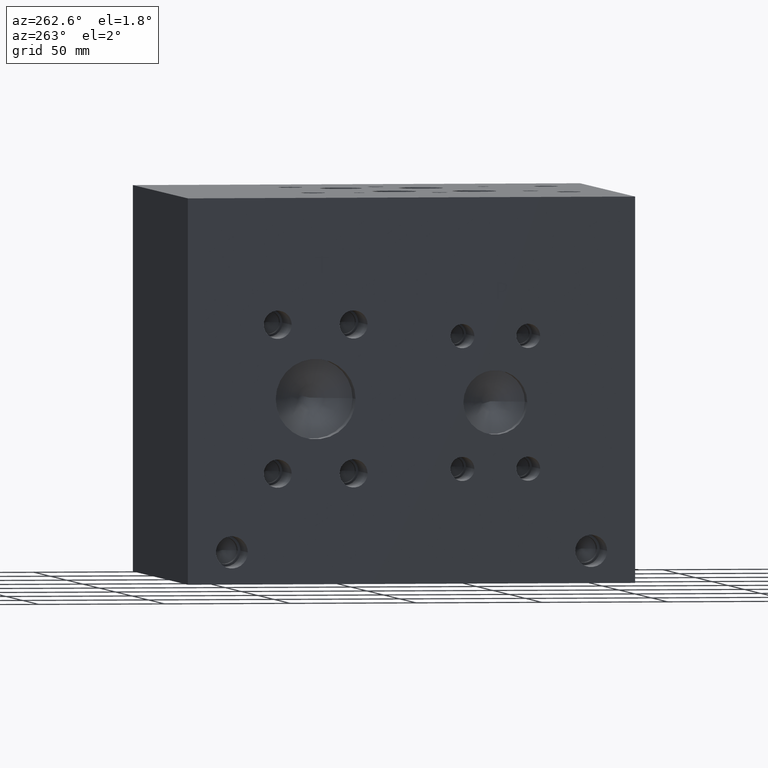
[diagram: clean part render]
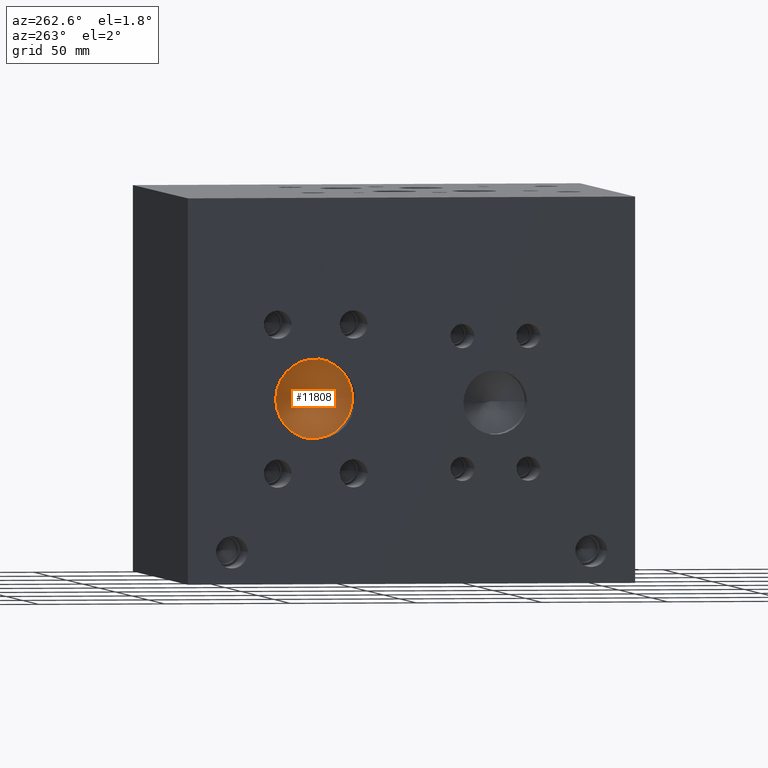
[diagram: same view with one face highlighted and labeled with its STEP entity id]
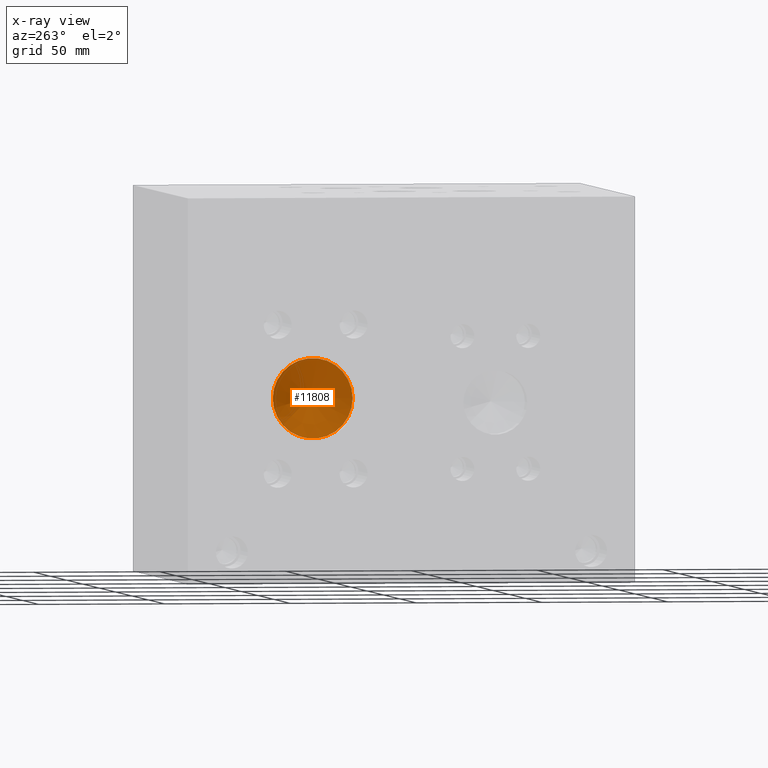
[diagram: x-ray of the same camera — body ghosted, the highlighted face saturated]
A machine part, auxiliary view. The second image highlights one B-rep face of the part: STEP entity #11808.
The next image is the same camera in x-ray: the body ghosted, the highlighted face saturated — about 0% of this face is hidden behind the body in this view.
In plain terms, the highlighted conical surface has half-angle 60 deg.
Its self-contained STEP definition (entity closure, byte-faithful):
#128=CONICAL_SURFACE('',#12520,7.9375,1.0471975511966);
#338=CIRCLE('',#12521,15.875);
#339=CIRCLE('',#12522,15.875);
#1500=FACE_OUTER_BOUND('',#2211,.T.);
#2211=EDGE_LOOP('',(#10277,#10278,#10279,#10280));
#3379=LINE('',#19679,#4494);
#4494=VECTOR('',#15001,7.9375);
#5733=VERTEX_POINT('',#19675);
#5734=VERTEX_POINT('',#19676);
#5735=VERTEX_POINT('',#19678);
#7306=EDGE_CURVE('',#5733,#5734,#338,.T.);
#7307=EDGE_CURVE('',#5734,#5735,#3379,.T.);
#7308=EDGE_CURVE('',#5734,#5733,#339,.T.);
#10277=ORIENTED_EDGE('',*,*,#7306,.T.);
#10278=ORIENTED_EDGE('',*,*,#7307,.T.);
#10279=ORIENTED_EDGE('',*,*,#7307,.F.);
#10280=ORIENTED_EDGE('',*,*,#7308,.T.);
#11808=ADVANCED_FACE('',(#1500),#128,.F.);
#12520=AXIS2_PLACEMENT_3D('',#19674,#14997,#14998);
#12521=AXIS2_PLACEMENT_3D('',#19677,#14999,#15000);
#12522=AXIS2_PLACEMENT_3D('',#19680,#15002,#15003);
#14997=DIRECTION('center_axis',(-1.,0.,0.));
#14998=DIRECTION('ref_axis',(0.,1.,0.));
#14999=DIRECTION('center_axis',(-1.,0.,0.));
#15000=DIRECTION('ref_axis',(0.,1.,0.));
#15001=DIRECTION('',(0.5,0.866025403784439,-1.06057523872491E-16));
#15002=DIRECTION('center_axis',(-1.,0.,0.));
#15003=DIRECTION('ref_axis',(0.,1.,0.));
#19674=CARTESIAN_POINT('Origin',(13.7481577616927,127.,73.025));
#19675=CARTESIAN_POINT('',(9.16544,142.875,73.025));
#19676=CARTESIAN_POINT('',(9.16544,111.125,73.025));
#19677=CARTESIAN_POINT('Origin',(9.16544,127.,73.025));
#19678=CARTESIAN_POINT('',(18.3308755233853,127.,73.025));
#19679=CARTESIAN_POINT('',(13.7481577616927,119.0625,73.025));
#19680=CARTESIAN_POINT('Origin',(9.16544,127.,73.025));